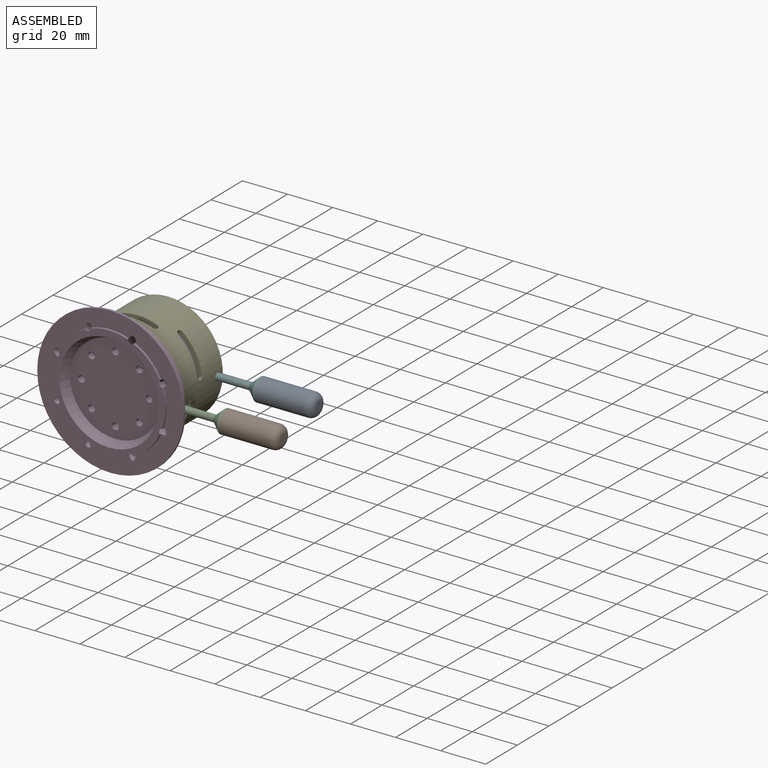
[diagram: assembled view]
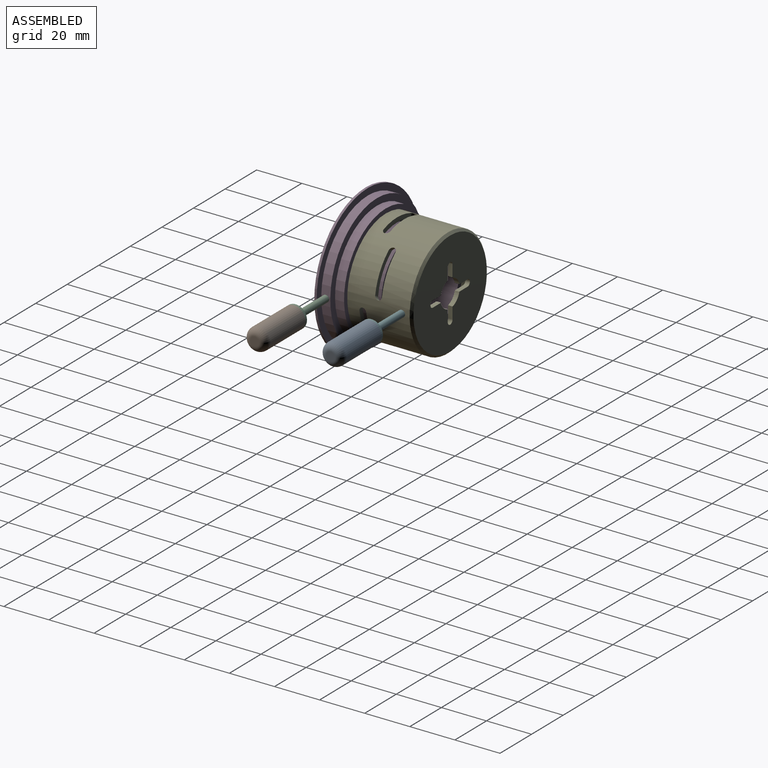
[diagram: assembled view, second angle]
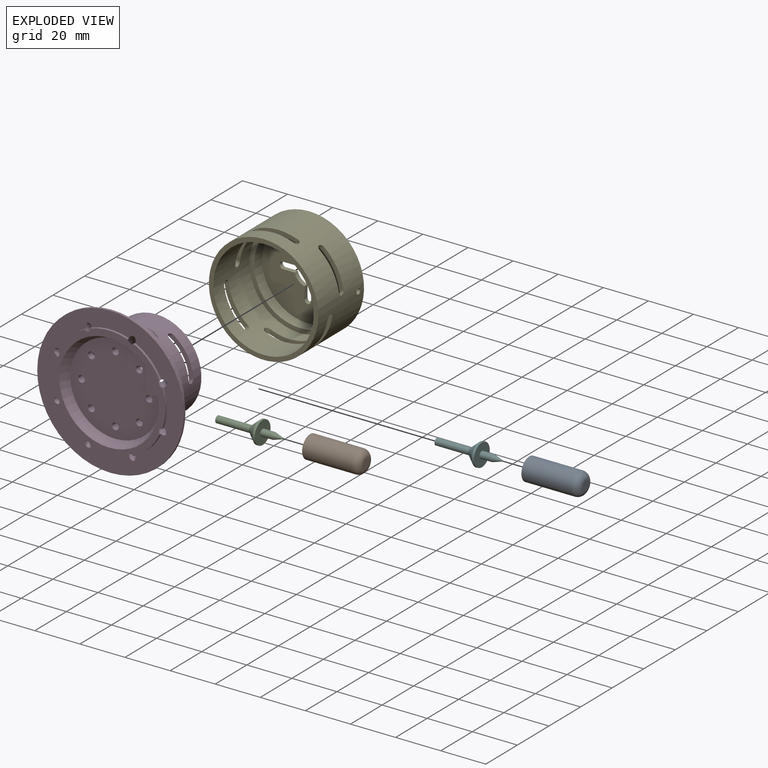
[diagram: exploded view]
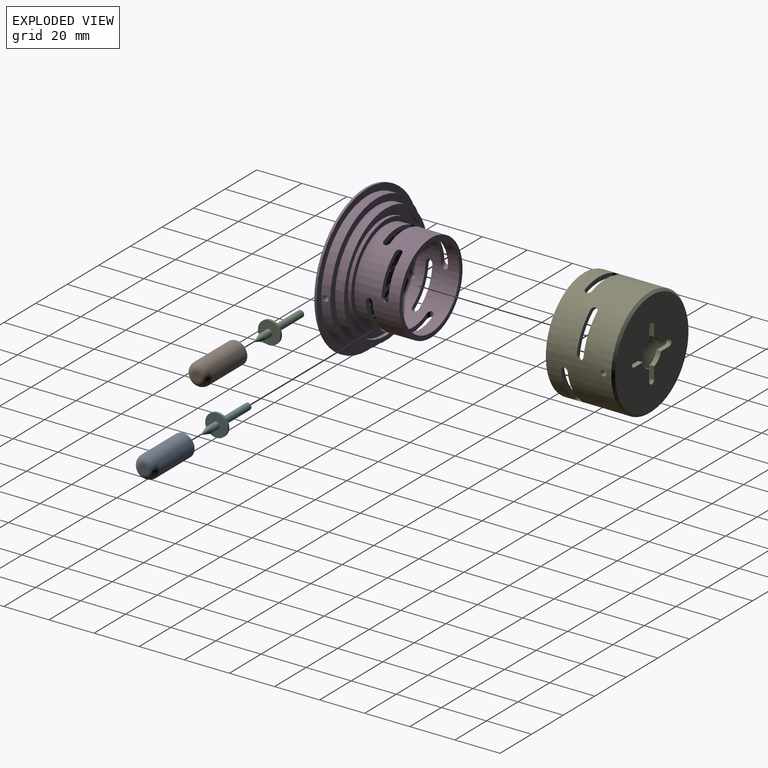
[diagram: exploded view, second angle]
ASSEMBLY  parts=6 mates=6
PART A: 4 faces, bbox 10x25x10 mm
  f0: cylinder r=5mm len=22mm, axis (0,1,0), area 691.2mm2, adj f2,f3
  f1: plane 4x4mm, normal (0,-1,0), area 12.6mm2, adj f3
  f2: plane 10x10mm, normal (0,1,0), area 78.5mm2, adj f0
  f3: torus R=2mm, axis (0,-1,0), area 115.8mm2, adj f0,f1
PART B: same geometry as A
PART C: 7 faces, bbox 10x30x10 mm
  f0: cylinder r=1.5mm len=15mm, axis (0,1,0), area 141.4mm2, adj f1,f4
  f1: plane 3x3mm, normal (0,1,0), area 7.1mm2, adj f0
  f2: cylinder r=5mm len=10mm, axis (0,1,0), area 31.4mm2, adj f3,f4
  f3: plane 10x10mm, normal (0,-1,0), area 71.5mm2, adj f2,f5
  f4: cone r=5mm half-angle=41.2deg, axis (0,-1,0), area 108.5mm2, adj f0,f2
  f5: cylinder r=1.5mm len=5mm, axis (0,1,0), area 47.1mm2, adj f3,f6
  f6: cone r=1.5mm half-angle=16.7deg, axis (0,1,0), area 24.6mm2, adj f5
PART D: 205 faces, bbox 65x31x65 mm
  f0: cylinder r=29.5mm len=59mm, axis (0,1,0), area 736.5mm2, adj f119,f120,f203
  f1: cylinder r=18mm len=36mm, axis (0,1,0), area 1963.7mm2, adj f4,f6,f8,f10,f12,f14,f16,f111
  f2: cylinder r=20mm len=40mm, axis (0,1,0), area 2149.5mm2, adj f112,f113,f179,f180,f181,f182,f183,f184
  f3: cylinder r=25mm len=11.77mm, axis (0,1,0), area 16.8mm2, adj f4,f6,f122,f123
  f4: cylinder r=1.5mm len=12.26mm, axis (0.61,0.75,-0.25), area 114.8mm2, adj f1,f3,f17,f111,f122,f123
  f5: cylinder r=25mm len=16.64mm, axis (0,1,0), area 16.8mm2, adj f6,f8,f122,f123
  f6: cylinder r=1.5mm len=12.26mm, axis (0.25,0.75,-0.61), area 114.8mm2, adj f1,f3,f5,f111,f122,f123
  f7: cylinder r=25mm len=11.77mm, axis (0,1,0), area 16.8mm2, adj f8,f10,f122,f123
  f8: cylinder r=1.5mm len=12.26mm, axis (-0.25,0.75,-0.61), area 114.8mm2, adj f1,f5,f7,f111,f122,f123
  f9: cylinder r=25mm len=16.64mm, axis (0,1,0), area 16.8mm2, adj f10,f12,f122,f123
  f10: cylinder r=1.5mm len=12.26mm, axis (-0.61,0.75,-0.25), area 114.8mm2, adj f1,f7,f9,f111,f122,f123
  f11: cylinder r=25mm len=11.77mm, axis (0,1,0), area 16.8mm2, adj f12,f14,f122,f123
  f12: cylinder r=1.5mm len=12.26mm, axis (-0.61,0.75,0.25), area 114.8mm2, adj f1,f9,f11,f111,f122,f123
  f13: cylinder r=25mm len=16.64mm, axis (0,1,0), area 16.8mm2, adj f14,f16,f122,f123
  f14: cylinder r=1.5mm len=12.26mm, axis (-0.25,0.75,0.61), area 114.8mm2, adj f1,f11,f13,f111,f122,f123
  f15: cylinder r=25mm len=11.77mm, axis (0,1,0), area 16.8mm2, adj f16,f122,f123,f178
  f16: cylinder r=1.5mm len=12.26mm, axis (0.25,0.75,0.61), area 114.8mm2, adj f1,f13,f15,f111,f122,f123
  f17: cylinder r=25mm len=16.64mm, axis (0,1,0), area 16.8mm2, adj f4,f122,f123,f178
  f18: cylinder r=4mm len=2mm, axis (0,1,0), area 3.3mm2, adj f26,f107,f175,f177
  f19: cylinder r=4mm len=2mm, axis (0,1,0), area 3.3mm2, adj f27,f107,f173,f174
  f20: cylinder r=4mm len=2mm, axis (0,1,0), area 3.3mm2, adj f28,f107,f171,f172
  f21: cylinder r=4mm len=2mm, axis (0,1,0), area 3.3mm2, adj f102,f107,f169,f170
  f22: cylinder r=4mm len=2mm, axis (0,1,0), area 3.3mm2, adj f25,f107,f162,f176
  f23: cylinder r=4mm len=2mm, axis (0,1,0), area 3.3mm2, adj f29,f107,f167,f168
  f24: cylinder r=4mm len=2mm, axis (0,1,0), area 3.3mm2, adj f30,f107,f165,f166
  f25: plane 2.93x2.64mm, normal (0,1,0), area 4.8mm2, adj f22,f36,f162,f176
  f26: plane 2.93x2.64mm, normal (0,1,0), area 4.8mm2, adj f18,f32,f175,f177
  f27: plane 2.93x2.64mm, normal (0,1,0), area 4.8mm2, adj f19,f33,f173,f174
  f28: plane 2.93x2.64mm, normal (0,1,0), area 4.8mm2, adj f20,f34,f171,f172
  f29: plane 2.93x2.64mm, normal (0,1,0), area 4.8mm2, adj f23,f37,f167,f168
  f30: plane 2.93x2.64mm, normal (0,1,0), area 4.8mm2, adj f24,f38,f165,f166
  f31: plane 2.93x2.64mm, normal (0,1,0), area 4.8mm2, adj f101,f103,f163,f164
  f32: cylinder r=6mm len=2.93mm, axis (0,1,0), area 6.4mm2, adj f26,f107,f175,f177
  f33: cylinder r=6mm len=2.93mm, axis (0,1,0), area 6.4mm2, adj f27,f107,f173,f174
  f34: cylinder r=6mm len=2.93mm, axis (0,1,0), area 6.4mm2, adj f28,f107,f171,f172
  f35: cylinder r=6mm len=2.93mm, axis (0,1,0), area 6.4mm2, adj f102,f107,f169,f170
  f36: cylinder r=6mm len=2.93mm, axis (0,1,0), area 6.4mm2, adj f25,f107,f162,f176
  f37: cylinder r=6mm len=2.93mm, axis (0,1,0), area 6.4mm2, adj f29,f107,f167,f168
  f38: cylinder r=6mm len=2.93mm, axis (0,1,0), area 6.4mm2, adj f30,f107,f165,f166
  f39: cylinder r=8mm len=4.35mm, axis (0,1,0), area 9.6mm2, adj f47,f107,f159,f160
  f40: cylinder r=8mm len=4.35mm, axis (0,1,0), area 9.6mm2, adj f48,f107,f157,f158
  f41: cylinder r=8mm len=4.35mm, axis (0,1,0), area 9.6mm2, adj f49,f107,f155,f156
  f42: cylinder r=8mm len=4.35mm, axis (0,1,0), area 9.6mm2, adj f105,f107,f153,f154
  f43: cylinder r=8mm len=4.35mm, axis (0,1,0), area 9.6mm2, adj f46,f107,f146,f161
  f44: cylinder r=8mm len=4.35mm, axis (0,1,0), area 9.6mm2, adj f50,f107,f151,f152
  f45: cylinder r=8mm len=4.35mm, axis (0,1,0), area 9.6mm2, adj f51,f107,f149,f150
  f46: plane 5.77x3.81mm, normal (0,1,0), area 11.1mm2, adj f43,f57,f146,f161
  f47: plane 5.77x3.81mm, normal (0,1,0), area 11.1mm2, adj f39,f53,f159,f160
  f48: plane 5.77x3.81mm, normal (0,1,0), area 11.1mm2, adj f40,f54,f157,f158
  f49: plane 5.77x3.81mm, normal (0,1,0), area 11.1mm2, adj f41,f55,f155,f156
  f50: plane 5.77x3.81mm, normal (0,1,0), area 11.1mm2, adj f44,f58,f151,f152
  f51: plane 5.77x3.81mm, normal (0,1,0), area 11.1mm2, adj f45,f59,f149,f150
  f52: plane 5.77x3.81mm, normal (0,1,0), area 11.1mm2, adj f104,f106,f147,f148
  f53: cylinder r=10mm len=5.77mm, axis (0,1,0), area 12.7mm2, adj f47,f107,f159,f160
  f54: cylinder r=10mm len=5.77mm, axis (0,1,0), area 12.7mm2, adj f48,f107,f157,f158
  f55: cylinder r=10mm len=5.77mm, axis (0,1,0), area 12.7mm2, adj f49,f107,f155,f156
  f56: cylinder r=10mm len=5.77mm, axis (0,1,0), area 12.7mm2, adj f105,f107,f153,f154
  f57: cylinder r=10mm len=5.77mm, axis (0,1,0), area 12.7mm2, adj f46,f107,f146,f161
  f58: cylinder r=10mm len=5.77mm, axis (0,1,0), area 12.7mm2, adj f50,f107,f151,f152
  f59: cylinder r=10mm len=5.77mm, axis (0,1,0), area 12.7mm2, adj f51,f107,f149,f150
  f60: cylinder r=12mm len=7.19mm, axis (0,1,0), area 15.8mm2, adj f68,f107,f143,f144
  f61: cylinder r=12mm len=7.19mm, axis (0,1,0), area 15.8mm2, adj f69,f107,f141,f142
  f62: cylinder r=12mm len=7.19mm, axis (0,1,0), area 15.8mm2, adj f70,f107,f139,f140
  f63: cylinder r=12mm len=7.19mm, axis (0,1,0), area 15.8mm2, adj f107,f109,f137,f138
  f64: cylinder r=12mm len=7.19mm, axis (0,1,0), area 15.8mm2, adj f67,f107,f130,f145
  f65: cylinder r=12mm len=7.19mm, axis (0,1,0), area 15.8mm2, adj f71,f107,f135,f136
  f66: cylinder r=12mm len=7.19mm, axis (0,1,0), area 15.8mm2, adj f72,f107,f133,f134
  f67: plane 8.41x4.96mm, normal (0,1,0), area 17.3mm2, adj f64,f77,f125,f129,f130,f145
  f68: plane 8.41x4.96mm, normal (0,1,0), area 17.3mm2, adj f60,f84,f125,f126,f143,f144
  f69: plane 8.41x4.96mm, normal (0,1,0), area 17.3mm2, adj f61,f83,f126,f127,f141,f142
  f70: plane 8.41x4.96mm, normal (0,1,0), area 17.3mm2, adj f62,f82,f127,f128,f139,f140
  f71: plane 8.41x4.96mm, normal (0,1,0), area 17.3mm2, adj f65,f74,f75,f80,f135,f136
  f72: plane 8.41x4.96mm, normal (0,1,0), area 17.3mm2, adj f66,f75,f76,f79,f133,f134
  f73: plane 8.41x4.96mm, normal (0,1,0), area 17.3mm2, adj f76,f78,f108,f129,f131,f132
  f74: cylinder r=1.5mm len=5mm, axis (0,-1,0), area 35.2mm2, adj f71,f80,f81,f87,f88,f95,f96,f100
  f75: cylinder r=1.5mm len=5mm, axis (0,-1,0), area 35.2mm2, adj f71,f72,f79,f80,f87,f91,f94,f95
  f76: cylinder r=1.5mm len=5mm, axis (0,-1,0), area 35.2mm2, adj f72,f73,f78,f79,f86,f91,f93,f94
  f77: cylinder r=14mm len=8.03mm, axis (0,1,0), area 17.7mm2, adj f67,f85,f125,f129
  f78: cylinder r=14mm len=8.03mm, axis (0,1,0), area 17.7mm2, adj f73,f76,f86,f129
  f79: cylinder r=14mm len=8.03mm, axis (0,1,0), area 17.7mm2, adj f72,f75,f76,f91
  f80: cylinder r=14mm len=8.03mm, axis (0,1,0), area 17.7mm2, adj f71,f74,f75,f87
  f81: cylinder r=14mm len=8.03mm, axis (0,1,0), area 17.7mm2, adj f74,f88,f109,f128
  f82: cylinder r=14mm len=8.03mm, axis (0,1,0), area 17.7mm2, adj f70,f89,f127,f128
  f83: cylinder r=14mm len=8.03mm, axis (0,1,0), area 17.7mm2, adj f69,f90,f126,f127
  f84: cylinder r=14mm len=8.03mm, axis (0,1,0), area 17.7mm2, adj f68,f110,f125,f126
  f85: plane 9.39x5.33mm, normal (0,1,0), area 18mm2, adj f77,f92,f125,f129
  f86: plane 9.39x5.33mm, normal (0,1,0), area 18mm2, adj f76,f78,f93,f129
  f87: plane 9.39x5.33mm, normal (0,1,0), area 18mm2, adj f74,f75,f80,f95
  f88: plane 9.39x5.33mm, normal (0,1,0), area 18mm2, adj f74,f81,f96,f128
  f89: plane 9.39x5.33mm, normal (0,1,0), area 18mm2, adj f82,f97,f127,f128
  f90: plane 9.39x5.33mm, normal (0,1,0), area 18mm2, adj f83,f98,f126,f127
  f91: plane 9.39x5.33mm, normal (0,1,0), area 18mm2, adj f75,f76,f79,f94
  f92: cylinder r=16mm len=9.31mm, axis (0,1,0), area 20.5mm2, adj f85,f111,f125,f129
  f93: cylinder r=16mm len=9.31mm, axis (0,1,0), area 20.5mm2, adj f76,f86,f111,f129
  f94: cylinder r=16mm len=9.31mm, axis (0,1,0), area 20.5mm2, adj f75,f76,f91,f111
  f95: cylinder r=16mm len=9.31mm, axis (0,1,0), area 20.5mm2, adj f74,f75,f87,f111
  f96: cylinder r=16mm len=9.31mm, axis (0,1,0), area 20.5mm2, adj f74,f88,f111,f128
  f97: cylinder r=16mm len=9.31mm, axis (0,1,0), area 20.5mm2, adj f89,f111,f127,f128
  f98: cylinder r=16mm len=9.31mm, axis (0,1,0), area 20.5mm2, adj f90,f111,f126,f127
  f99: cylinder r=16mm len=9.31mm, axis (0,1,0), area 20.5mm2, adj f110,f111,f125,f126
  f100: plane 40x40mm, normal (0,-1,0), area 1200.1mm2, adj f74,f75,f76,f124,f125,f126,f127,f128
  f101: cylinder r=4mm len=2mm, axis (0,1,0), area 3.3mm2, adj f31,f107,f163,f164
  f102: plane 2.93x2.64mm, normal (0,1,0), area 4.8mm2, adj f21,f35,f169,f170
  f103: cylinder r=6mm len=2.93mm, axis (0,1,0), area 6.4mm2, adj f31,f107,f163,f164
  f104: cylinder r=8mm len=4.35mm, axis (0,1,0), area 9.6mm2, adj f52,f107,f147,f148
  f105: plane 5.77x3.81mm, normal (0,1,0), area 11.1mm2, adj f42,f56,f153,f154
  f106: cylinder r=10mm len=5.77mm, axis (0,1,0), area 12.7mm2, adj f52,f107,f147,f148
  f107: plane 27.4x27.4mm, normal (0,1,0), area 343.5mm2, adj f18,f19,f20,f21,f22,f23,f24,f32
  f108: cylinder r=12mm len=7.19mm, axis (0,1,0), area 15.8mm2, adj f73,f107,f131,f132
  f109: plane 8.41x4.96mm, normal (0,1,0), area 17.3mm2, adj f63,f74,f81,f128,f137,f138
  f110: plane 9.39x5.33mm, normal (0,1,0), area 18mm2, adj f84,f99,f125,f126
  f111: plane 36x36mm, normal (0,1,0), area 170.1mm2, adj f1,f4,f6,f8,f10,f12,f14,f16
  f112: plane 40x40mm, normal (0,1,0), area 238.8mm2, adj f1,f2
  f113: plane 44x44mm, normal (0,1,0), area 263.9mm2, adj f2,f114
  f114: cylinder r=22mm len=44mm, axis (0,1,0), area 207.3mm2, adj f113,f115
  f115: plane 49x49mm, normal (0,1,0), area 365.2mm2, adj f114,f116
  f116: cylinder r=24.5mm len=49mm, axis (0,1,0), area 230.9mm2, adj f115,f117
  f117: plane 53x53mm, normal (0,1,0), area 320.4mm2, adj f116,f118
  f118: cylinder r=26.5mm len=53mm, axis (0,1,0), area 666mm2, adj f117,f119
  f119: plane 59x59mm, normal (0,1,0), area 527.8mm2, adj f0,f118
  f120: plane 65x65mm, normal (0,1,0), area 584.3mm2, adj f0,f121
  f121: cylinder r=32.5mm len=65mm, axis (0,1,0), area 204.2mm2, adj f120,f122
  f122: plane 65x65mm, normal (0,-1,0), area 1316.9mm2, adj f3,f4,f5,f6,f7,f8,f9,f10
  f123: plane 50x50mm, normal (0,-1,0), area 426mm2, adj f3,f4,f5,f6,f7,f8,f9,f10
  f124: cone r=20mm half-angle=26.6deg, axis (0,-1,0), area 590.1mm2, adj f100,f123
  f125: cylinder r=1.5mm len=5mm, axis (0,-1,0), area 35.2mm2, adj f67,f68,f77,f84,f85,f92,f99,f100
  f126: cylinder r=1.5mm len=5mm, axis (0,-1,0), area 35.2mm2, adj f68,f69,f83,f84,f90,f98,f99,f100
  f127: cylinder r=1.5mm len=5mm, axis (0,-1,0), area 35.2mm2, adj f69,f70,f82,f83,f89,f90,f97,f98
  f128: cylinder r=1.5mm len=5mm, axis (0,-1,0), area 35.2mm2, adj f70,f81,f82,f88,f89,f96,f97,f100
  f129: cylinder r=1.5mm len=5mm, axis (0,-1,0), area 35.2mm2, adj f67,f73,f77,f78,f85,f86,f92,f93
  f130: plane 2x1.72mm, normal (1,0,0), area 3.4mm2, adj f64,f67,f107,f129
  f131: plane 2x1.72mm, normal (-1,0,0), area 3.4mm2, adj f73,f107,f108,f129
  f132: plane 2x1.22mm, normal (0.71,0,0.71), area 3.4mm2, adj f73,f76,f107,f108
  f133: plane 2x1.22mm, normal (-0.71,0,-0.71), area 3.4mm2, adj f66,f72,f76,f107
  f134: plane 2x1.72mm, normal (0,0,1), area 3.4mm2, adj f66,f72,f75,f107
  f135: plane 2x1.72mm, normal (0,0,-1), area 3.4mm2, adj f65,f71,f75,f107
  f136: plane 2x1.22mm, normal (-0.71,0,0.71), area 3.4mm2, adj f65,f71,f74,f107
  f137: plane 2x1.22mm, normal (0.71,0,-0.71), area 3.4mm2, adj f63,f74,f107,f109
  f138: plane 2x1.72mm, normal (-1,0,0), area 3.4mm2, adj f63,f107,f109,f128
  f139: plane 2x1.72mm, normal (1,0,0), area 3.4mm2, adj f62,f70,f107,f128
  f140: plane 2x1.22mm, normal (-0.71,0,-0.71), area 3.4mm2, adj f62,f70,f107,f127
  f141: plane 2x1.22mm, normal (0.71,0,0.71), area 3.4mm2, adj f61,f69,f107,f127
  f142: plane 2x1.72mm, normal (0,0,-1), area 3.4mm2, adj f61,f69,f107,f126
  f143: plane 2x1.72mm, normal (0,0,1), area 3.4mm2, adj f60,f68,f107,f126
  f144: plane 2x1.22mm, normal (0.71,0,-0.71), area 3.4mm2, adj f60,f68,f107,f125
  f145: plane 2x1.22mm, normal (-0.71,0,0.71), area 3.4mm2, adj f64,f67,f107,f125
  f146: plane 2.01x2mm, normal (1,0,0), area 4mm2, adj f43,f46,f57,f107
  f147: plane 2.01x2mm, normal (-1,0,0), area 4mm2, adj f52,f104,f106,f107
  f148: plane 2x1.42mm, normal (0.71,0,0.71), area 4mm2, adj f52,f104,f106,f107
  f149: plane 2x1.42mm, normal (-0.71,0,-0.71), area 4mm2, adj f45,f51,f59,f107
  f150: plane 2.01x2mm, normal (0,0,1), area 4mm2, adj f45,f51,f59,f107
  f151: plane 2.01x2mm, normal (0,0,-1), area 4mm2, adj f44,f50,f58,f107
  f152: plane 2x1.42mm, normal (-0.71,0,0.71), area 4mm2, adj f44,f50,f58,f107
  f153: plane 2x1.42mm, normal (0.71,0,-0.71), area 4mm2, adj f42,f56,f105,f107
  f154: plane 2.01x2mm, normal (-1,0,0), area 4mm2, adj f42,f56,f105,f107
  f155: plane 2.01x2mm, normal (1,0,0), area 4mm2, adj f41,f49,f55,f107
  f156: plane 2x1.42mm, normal (-0.71,0,-0.71), area 4mm2, adj f41,f49,f55,f107
  f157: plane 2x1.42mm, normal (0.71,0,0.71), area 4mm2, adj f40,f48,f54,f107
  f158: plane 2.01x2mm, normal (0,0,-1), area 4mm2, adj f40,f48,f54,f107
  f159: plane 2.01x2mm, normal (0,0,1), area 4mm2, adj f39,f47,f53,f107
  f160: plane 2x1.42mm, normal (0.71,0,-0.71), area 4mm2, adj f39,f47,f53,f107
  f161: plane 2x1.42mm, normal (-0.71,0,0.71), area 4mm2, adj f43,f46,f57,f107
  f162: plane 2.02x2mm, normal (1,0,0), area 4mm2, adj f22,f25,f36,f107
  f163: plane 2.02x2mm, normal (-1,0,0), area 4mm2, adj f31,f101,f103,f107
  f164: plane 2x1.43mm, normal (0.71,0,0.71), area 4mm2, adj f31,f101,f103,f107
  f165: plane 2x1.43mm, normal (-0.71,0,-0.71), area 4mm2, adj f24,f30,f38,f107
  f166: plane 2.02x2mm, normal (0,0,1), area 4mm2, adj f24,f30,f38,f107
  f167: plane 2.02x2mm, normal (0,0,-1), area 4mm2, adj f23,f29,f37,f107
  f168: plane 2x1.43mm, normal (-0.71,0,0.71), area 4mm2, adj f23,f29,f37,f107
  f169: plane 2x1.43mm, normal (0.71,0,-0.71), area 4mm2, adj f21,f35,f102,f107
  f170: plane 2.02x2mm, normal (-1,0,0), area 4mm2, adj f21,f35,f102,f107
  f171: plane 2.02x2mm, normal (1,0,0), area 4mm2, adj f20,f28,f34,f107
  f172: plane 2x1.43mm, normal (-0.71,0,-0.71), area 4mm2, adj f20,f28,f34,f107
  f173: plane 2x1.43mm, normal (0.71,0,0.71), area 4mm2, adj f19,f27,f33,f107
  f174: plane 2.02x2mm, normal (0,0,-1), area 4mm2, adj f19,f27,f33,f107
  f175: plane 2.02x2mm, normal (0,0,1), area 4mm2, adj f18,f26,f32,f107
  f176: plane 2x1.43mm, normal (-0.71,0,0.71), area 4mm2, adj f22,f25,f36,f107
  f177: plane 2x1.43mm, normal (0.71,0,-0.71), area 4mm2, adj f18,f26,f32,f107
  f178: cylinder r=1.5mm len=12.26mm, axis (0.61,0.75,0.25), area 114.8mm2, adj f1,f15,f17,f111,f122,f123
  f179: plane 17x4.13mm, normal (0,-1,0), area 35.3mm2, adj f1,f2,f200,f201
  f180: plane 17x4.13mm, normal (0,1,0), area 35.3mm2, adj f1,f2,f200,f201
  f181: plane 15.84x10.44mm, normal (0,-1,0), area 35.3mm2, adj f1,f2,f198,f202
  f182: plane 15.84x10.44mm, normal (0,1,0), area 35.3mm2, adj f1,f2,f198,f202
  f183: plane 15.84x10.44mm, normal (0,-1,0), area 35.3mm2, adj f1,f2,f197,f199
  f184: plane 15.84x10.44mm, normal (0,1,0), area 35.3mm2, adj f1,f2,f197,f199
  f185: plane 15.84x10.44mm, normal (0,1,0), area 35.3mm2, adj f1,f2,f193,f196
  f186: plane 15.84x10.44mm, normal (0,-1,0), area 35.3mm2, adj f1,f2,f193,f196
  f187: plane 17x4.13mm, normal (0,1,0), area 35.3mm2, adj f1,f2,f194,f195
  f188: plane 17x4.13mm, normal (0,-1,0), area 35.3mm2, adj f1,f2,f194,f195
  f189: plane 15.84x10.44mm, normal (0,1,0), area 35.3mm2, adj f1,f2,f191,f192
  f190: plane 15.84x10.44mm, normal (0,-1,0), area 35.3mm2, adj f1,f2,f191,f192
  f191: cylinder r=1.5mm len=3.47mm, axis (-0.87,0,-0.5), area 10.9mm2, adj f1,f2,f189,f190
  f192: cylinder r=1.5mm len=3.47mm, axis (0.87,0,0.5), area 10.9mm2, adj f1,f2,f189,f190
  f193: cylinder r=1.5mm len=3.47mm, axis (0.87,0,-0.5), area 10.9mm2, adj f1,f2,f185,f186
  f194: cylinder r=1.5mm len=3.14mm, axis (0,0,1), area 10.9mm2, adj f1,f2,f187,f188
  f195: cylinder r=1.5mm len=3.14mm, axis (0,0,-1), area 10.9mm2, adj f1,f2,f187,f188
  f196: cylinder r=1.5mm len=3.47mm, axis (0.87,0,-0.5), area 10.9mm2, adj f1,f2,f185,f186
  f197: cylinder r=1.5mm len=3.47mm, axis (-0.87,0,0.5), area 10.9mm2, adj f1,f2,f183,f184
  f198: cylinder r=1.5mm len=3.47mm, axis (0.87,0,0.5), area 10.9mm2, adj f1,f2,f181,f182
  f199: cylinder r=1.5mm len=3.47mm, axis (0.87,0,-0.5), area 10.9mm2, adj f1,f2,f183,f184
  f200: cylinder r=1.5mm len=3.14mm, axis (0,0,-1), area 10.9mm2, adj f1,f2,f179,f180
  f201: cylinder r=1.5mm len=3.14mm, axis (0,0,1), area 10.9mm2, adj f1,f2,f179,f180
  f202: cylinder r=1.5mm len=3.47mm, axis (0.87,0,0.5), area 10.9mm2, adj f1,f2,f181,f182
  f203: cylinder r=1.25mm len=7.97mm, axis (1,0,0), area 62.6mm2, adj f0,f204
  f204: cone r=0mm half-angle=59deg, axis (1,0,0), area 5.7mm2, adj f203
PART E: 49 faces, bbox 49.3x30x48.5 mm
  f0: cylinder r=24.25mm len=48.5mm, axis (0,-1,0), area 4055.4mm2, adj f4,f23,f24,f25,f26,f27,f28,f29
  f1: cylinder r=20.25mm len=40.5mm, axis (0,1,0), area 631.2mm2, adj f21,f22,f48
  f2: cylinder r=22.25mm len=44.5mm, axis (0,-1,0), area 2854.9mm2, adj f4,f22,f24,f25,f26,f27,f28,f29
  f3: plane 46.5x46.5mm, normal (0,1,0), area 1510.2mm2, adj f5,f6,f7,f8,f9,f10,f11,f12
  f4: plane 48.5x48.5mm, normal (0,-1,0), area 292.2mm2, adj f0,f2
  f5: cylinder r=6mm len=4.31mm, axis (0,1,0), area 12.8mm2, adj f3,f6,f20,f21
  f6: plane 5.19x2mm, normal (1,0,0), area 10.4mm2, adj f3,f5,f7,f21
  f7: cylinder r=1.5mm len=3mm, axis (0,1,0), area 9.4mm2, adj f3,f6,f8,f21
  f8: plane 5.19x2mm, normal (-1,0,0), area 10.4mm2, adj f3,f7,f9,f21
  f9: cylinder r=6mm len=4.31mm, axis (0,1,0), area 12.8mm2, adj f3,f8,f10,f21
  f10: plane 5.19x2mm, normal (0,0,1), area 10.4mm2, adj f3,f9,f11,f21
  f11: cylinder r=1.5mm len=3mm, axis (0,1,0), area 9.4mm2, adj f3,f10,f12,f21
  f12: plane 5.19x2mm, normal (0,0,-1), area 10.4mm2, adj f3,f11,f13,f21
  f13: cylinder r=6mm len=4.31mm, axis (0,1,0), area 12.8mm2, adj f3,f12,f14,f21
  f14: plane 5.19x2mm, normal (-1,0,0), area 10.4mm2, adj f3,f13,f15,f21
  f15: cylinder r=1.5mm len=3mm, axis (0,1,0), area 9.4mm2, adj f3,f14,f16,f21
  f16: plane 5.19x2mm, normal (1,0,0), area 10.4mm2, adj f3,f15,f17,f21
  f17: cylinder r=6mm len=4.31mm, axis (0,1,0), area 12.8mm2, adj f3,f16,f18,f21
  f18: plane 5.19x2mm, normal (0,0,-1), area 10.4mm2, adj f3,f17,f19,f21
  f19: cylinder r=1.5mm len=3mm, axis (0,1,0), area 9.4mm2, adj f3,f18,f20,f21
  f20: plane 5.19x2mm, normal (0,0,1), area 10.4mm2, adj f3,f5,f19,f21
  f21: plane 40.5x40.5mm, normal (0,-1,0), area 1100.3mm2, adj f1,f5,f6,f7,f8,f9,f10,f11
  f22: plane 44.5x44.5mm, normal (0,-1,0), area 267mm2, adj f1,f2
  f23: cone r=23.25mm half-angle=45deg, axis (0,-1,0), area 211mm2, adj f0,f3
  f24: plane 17x3.69mm, normal (0,1,0), area 34.8mm2, adj f0,f2,f45,f47
  f25: plane 17x3.69mm, normal (0,-1,0), area 34.8mm2, adj f0,f2,f45,f47
  f26: plane 15.8x10.36mm, normal (0,1,0), area 34.8mm2, adj f0,f2,f44,f46
  f27: plane 15.8x10.36mm, normal (0,-1,0), area 34.8mm2, adj f0,f2,f44,f46
  f28: plane 15.8x10.36mm, normal (0,-1,0), area 34.8mm2, adj f0,f2,f42,f43
  f29: plane 15.8x10.36mm, normal (0,1,0), area 34.8mm2, adj f0,f2,f42,f43
  f30: plane 15.8x10.36mm, normal (0,-1,0), area 34.8mm2, adj f0,f2,f37,f40
  f31: plane 15.8x10.36mm, normal (0,1,0), area 34.8mm2, adj f0,f2,f37,f40
  f32: plane 17x3.69mm, normal (0,-1,0), area 34.8mm2, adj f0,f2,f36,f41
  f33: plane 17x3.69mm, normal (0,1,0), area 34.8mm2, adj f0,f2,f36,f41
  f34: plane 15.8x10.36mm, normal (0,1,0), area 34.8mm2, adj f0,f2,f38,f39
  f35: plane 15.8x10.36mm, normal (0,-1,0), area 34.8mm2, adj f0,f2,f38,f39
  f36: cylinder r=1.5mm len=3mm, axis (0,0,-1), area 10.3mm2, adj f0,f2,f32,f33
  f37: cylinder r=1.5mm len=3.21mm, axis (-0.87,0,0.5), area 10.3mm2, adj f0,f2,f30,f31
  f38: cylinder r=1.5mm len=3.21mm, axis (-0.87,0,-0.5), area 10.3mm2, adj f0,f2,f34,f35
  f39: cylinder r=1.5mm len=3.21mm, axis (0.87,0,0.5), area 10.3mm2, adj f0,f2,f34,f35
  f40: cylinder r=1.5mm len=3.21mm, axis (0.87,0,-0.5), area 10.3mm2, adj f0,f2,f30,f31
  f41: cylinder r=1.5mm len=3mm, axis (0,0,1), area 10.3mm2, adj f0,f2,f32,f33
  f42: cylinder r=1.5mm len=3.21mm, axis (0.87,0,-0.5), area 10.3mm2, adj f0,f2,f28,f29
  f43: cylinder r=1.5mm len=3.21mm, axis (-0.87,0,0.5), area 10.3mm2, adj f0,f2,f28,f29
  f44: cylinder r=1.5mm len=3.21mm, axis (-0.87,0,-0.5), area 10.3mm2, adj f0,f2,f26,f27
  f45: cylinder r=1.5mm len=3mm, axis (0,0,1), area 10.3mm2, adj f0,f2,f24,f25
  f46: cylinder r=1.5mm len=3.21mm, axis (0.87,0,0.5), area 10.3mm2, adj f0,f2,f26,f27
  f47: cylinder r=1.5mm len=3mm, axis (0,0,-1), area 10.3mm2, adj f0,f2,f24,f25
  f48: cylinder r=1.25mm len=4.04mm, axis (1,0,0), area 31.4mm2, adj f0,f1
PART F: same geometry as C
PLACE A rot(axis=(-0.58,0.58,0.58),120deg) t=(-8.53,16.4,30.88)mm
PLACE B rot(axis=(-0.58,0.58,0.58),120deg) t=(-3.26,-13.6,30.88)mm
PLACE C rot(axis=(-0.58,0.58,0.58),120deg) t=(-3.26,-13.6,30.88)mm
PLACE D t=(-32.81,-13.6,30.88)mm fixed
PLACE E t=(-32.81,-13.6,30.88)mm
PLACE F rot(axis=(-0.58,0.58,0.58),120deg) t=(-8.53,16.4,30.88)mm
MATE planar E.f17 <-> D.f0  axis (0,-1,0) through (-32.81,-9.1,30.88)mm
MATE revolute E.f2 <-> D.f0  axis (0,-1,0) through (-32.81,-9.1,30.88)mm
MATE fastened F.f2 <-> A.f0  axis (1,0,0) through (11.47,16.4,30.88)mm
MATE fastened F.f0 <-> E.f48  axis (-1,0,0) through (-8.53,16.4,30.88)mm
MATE fastened C.f2 <-> B.f0  axis (1,0,0) through (16.74,-13.6,30.88)mm
MATE fastened C.f0 <-> D.f203  axis (-1,0,0) through (-3.26,-13.6,30.88)mm
